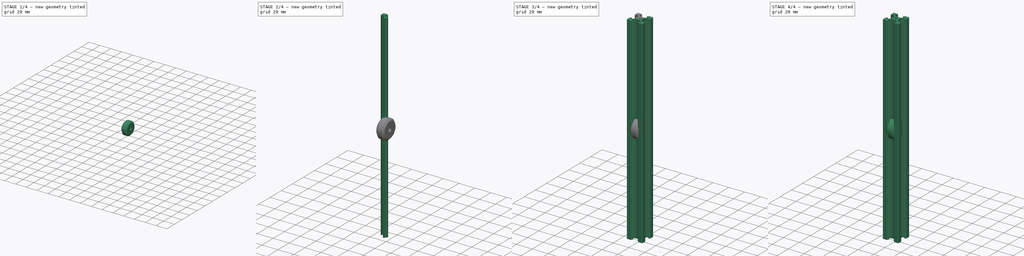
[diagram: build sequence overview — one tinted view per stage of 4, left to right]
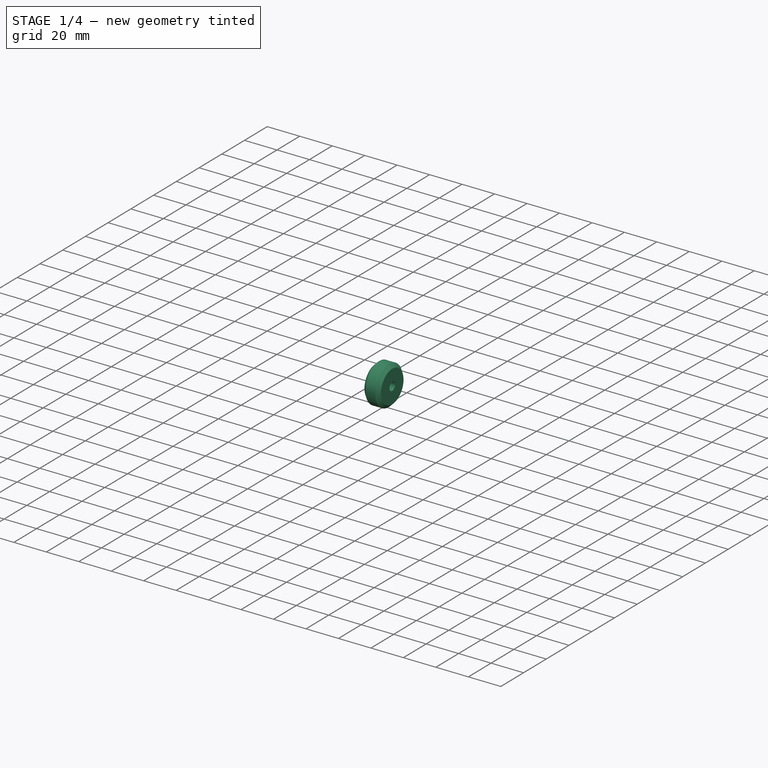
[diagram: stage 1 of 4 — iso view after this stage's code; geometry added in this stage tinted green]
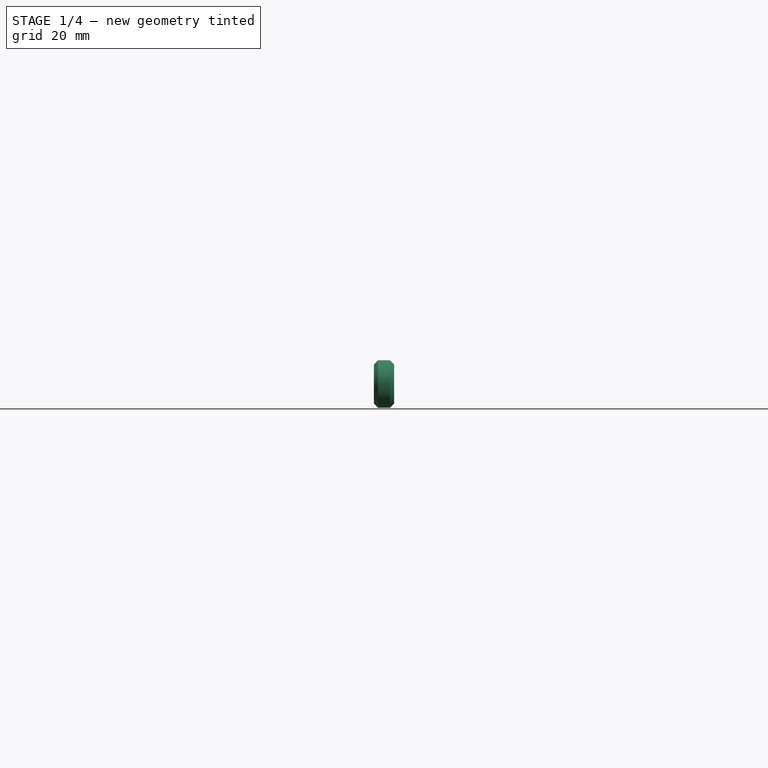
[diagram: stage 1 of 4 — front view after this stage's code; geometry added in this stage tinted green]
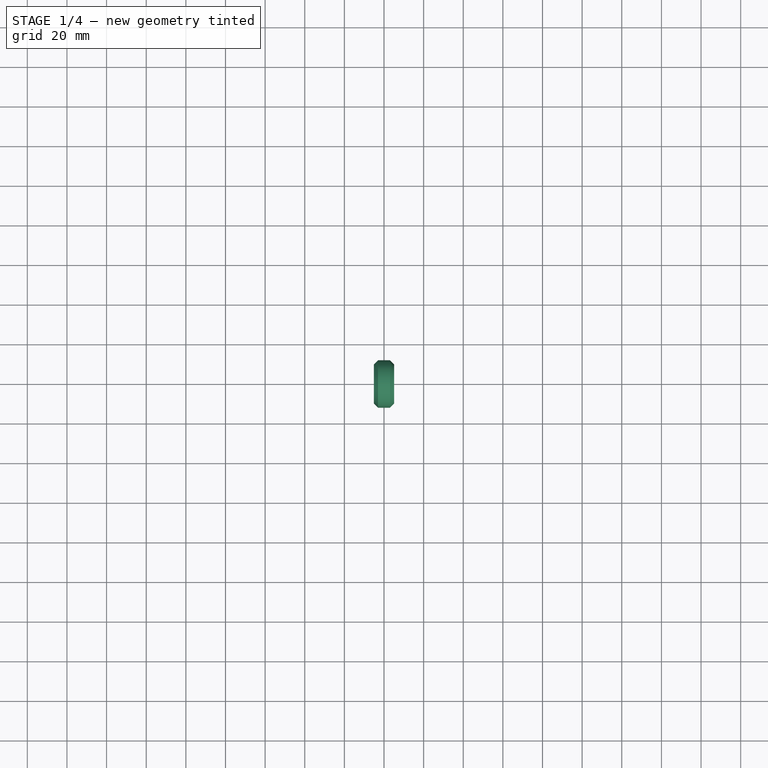
[diagram: stage 1 of 4 — top view after this stage's code; geometry added in this stage tinted green]
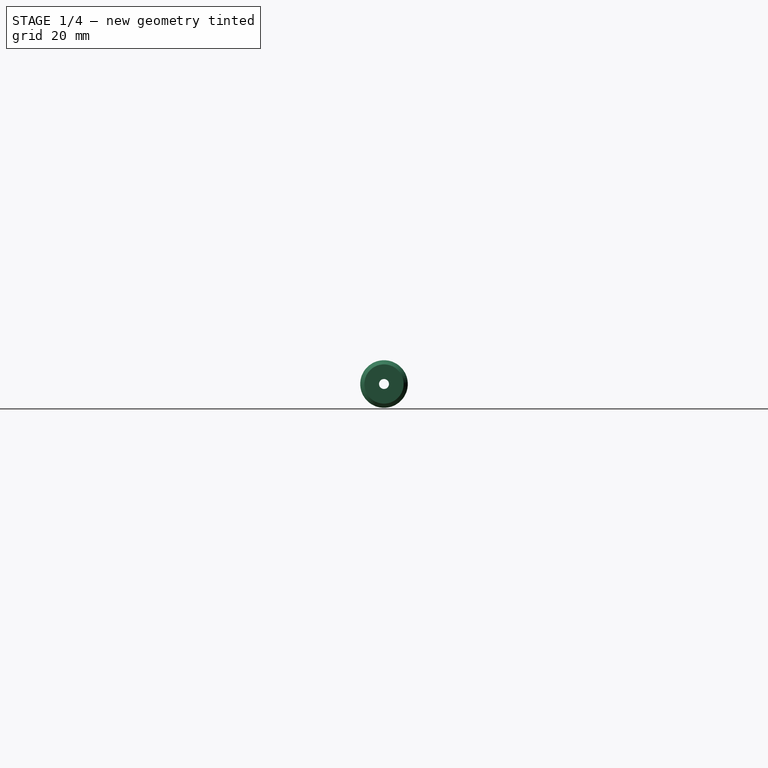
[diagram: stage 1 of 4 — right view after this stage's code; geometry added in this stage tinted green]
FCSTD DOCUMENT  (FreeCAD 0.18R15969 (Git))
Label: hotbar_motion
License: All rights reserved
LicenseURL: http://en.wikipedia.org/wiki/All_rights_reserved
objects: Sketcher::SketchObject×6, PartDesign::Body×6, PartDesign::Pad×3, PartDesign::PolarPattern×3, App::Part×3, PartDesign::Revolution×3, Spreadsheet::Sheet×1
note: 27 computed .brp shape members not serialized (recipe doc carries the construction recipe); baked Part::Feature solids carry a one-line shape summary decoded from their .brp

FEATURE [PartDesign::Body] Body007
  Group = -> [Sketch007,Revolution]
  Origin = -> Origin011
  Placement = pos=(25,0,0) rot=(0,0,1;1.5708rad)
  Tip = -> Revolution
FEATURE [Sketcher::SketchObject] Sketch008
  MapMode = 5
  Placement = pos=(0,0,0) rot=(1,0,0;1.5708rad)
  Support = -> [XZ_Plane012]
  sketch-geometry (8):
    g0: LineSegment StartX=-3 StartY=12 StartZ=0 EndX=-5.1 EndY=9.9 EndZ=0
    g1: LineSegment StartX=-3 StartY=12 StartZ=0 EndX=3 EndY=12 EndZ=0
    g2: LineSegment StartX=3 StartY=12 StartZ=0 EndX=5.1 EndY=9.9 EndZ=0
    g3: LineSegment StartX=-5.1 StartY=9.9 StartZ=0 EndX=-5.1 EndY=2.5 EndZ=0
    g4: LineSegment StartX=-5.1 StartY=2.5 StartZ=0 EndX=5.1 EndY=2.5 EndZ=0
    g5: LineSegment StartX=5.1 StartY=2.5 StartZ=0 EndX=5.1 EndY=9.9 EndZ=0
    g6: LineSegment [constr] StartX=-5.1 StartY=2.5 StartZ=0 EndX=0 EndY=0 EndZ=0
    g7: LineSegment [constr] StartX=0 StartY=0 StartZ=0 EndX=5.1 EndY=2.5 EndZ=0
  constraints (22):
    c: Coincident(g1,g0)
    c: Horizontal(g1)
    c: Coincident(g2,g1)
    c: Coincident(g3,g0)
    c: Vertical(g3)
    c: Coincident(g4,g3)
    c: Horizontal(g4)
    c: Coincident(g5,g4)
    c: Coincident(g5,g2)
    c: Vertical(g5)
    c: Coincident(g6,g3)
    c: Coincident(g6,g-1)
    c: Coincident(g7,g-1)
    c: Coincident(g7,g4)
    c: Equal(g7,g6)
    c: DistanceY(g-1,g3) = 2.5
    c: DistanceX(g3,g4) = 10.2
    c: Equal(g0,g2)
    c: Equal(g3,g5)
    c: Angle(g3,g0) = 2.35619
    c: DistanceX(g1,g1) = 6
    c: DistanceY(g-1,g0) = 12
FEATURE [PartDesign::Revolution] Revolution001
  Angle = 360
  Axis = (1,0,0)
  Base = (0,0,0)
  Placement = pos=(0,0,0) rot=(1,0,0;1.5708rad)
  Profile = -> Sketch008
  ReferenceAxis = -> X_Axis012
  Refine = true
  Reversed = true
FEATURE [PartDesign::Body] Body008
  Group = -> [Sketch008,Revolution001]
  Origin = -> Origin012
  Placement = pos=(-25,0,0) rot=(0,0,1;1.5708rad)
  Tip = -> Revolution001
FEATURE [Sketcher::SketchObject] Sketch009
  MapMode = 5
  Placement = pos=(0,0,0) rot=(1,0,0;1.5708rad)
  Support = -> [XZ_Plane014]
  sketch-geometry (8):
    g0: LineSegment StartX=-3 StartY=12 StartZ=0 EndX=-5.1 EndY=9.9 EndZ=0
    g1: LineSegment StartX=-3 StartY=12 StartZ=0 EndX=3 EndY=12 EndZ=0
    g2: LineSegment StartX=3 StartY=12 StartZ=0 EndX=5.1 EndY=9.9 EndZ=0
    g3: LineSegment StartX=-5.1 StartY=9.9 StartZ=0 EndX=-5.1 EndY=2.5 EndZ=0
    g4: LineSegment StartX=-5.1 StartY=2.5 StartZ=0 EndX=5.1 EndY=2.5 EndZ=0
    g5: LineSegment StartX=5.1 StartY=2.5 StartZ=0 EndX=5.1 EndY=9.9 EndZ=0
    g6: LineSegment [constr] StartX=-5.1 StartY=2.5 StartZ=0 EndX=0 EndY=0 EndZ=0
    g7: LineSegment [constr] StartX=0 StartY=0 StartZ=0 EndX=5.1 EndY=2.5 EndZ=0
  constraints (22):
    c: Coincident(g1,g0)
    c: Horizontal(g1)
    c: Coincident(g2,g1)
    c: Coincident(g3,g0)
    c: Vertical(g3)
    c: Coincident(g4,g3)
    c: Horizontal(g4)
    c: Coincident(g5,g4)
    c: Coincident(g5,g2)
    c: Vertical(g5)
    c: Coincident(g6,g3)
    c: Coincident(g6,g-1)
    c: Coincident(g7,g-1)
    c: Coincident(g7,g4)
    c: Equal(g7,g6)
    c: DistanceY(g-1,g3) = 2.5
    c: DistanceX(g3,g4) = 10.2
    c: Equal(g0,g2)
    c: Equal(g3,g5)
    c: Angle(g3,g0) = 2.35619
    c: DistanceX(g1,g1) = 6
    c: DistanceY(g-1,g0) = 12
FEATURE [PartDesign::Revolution] Revolution002
  Angle = 360
  Axis = (1,0,0)
  Base = (0,0,0)
  Placement = pos=(0,0,0) rot=(1,0,0;1.5708rad)
  Profile = -> Sketch009
  ReferenceAxis = -> X_Axis014
  Refine = true
  Reversed = true
FEATURE [PartDesign::Body] Body009
  Group = -> [Sketch009,Revolution002]
  Origin = -> Origin014
  Placement = pos=(0,0,40) rot=(0,0,1;1.5708rad)
  Tip = -> Revolution002
FEATURE [App::Part] Part004  label="Wheels"
  Group = -> [Body007,Body008,Body009]
  Origin = -> Origin013
  Placement = pos=(0,-115,0) rot=(0,0,1;0rad)
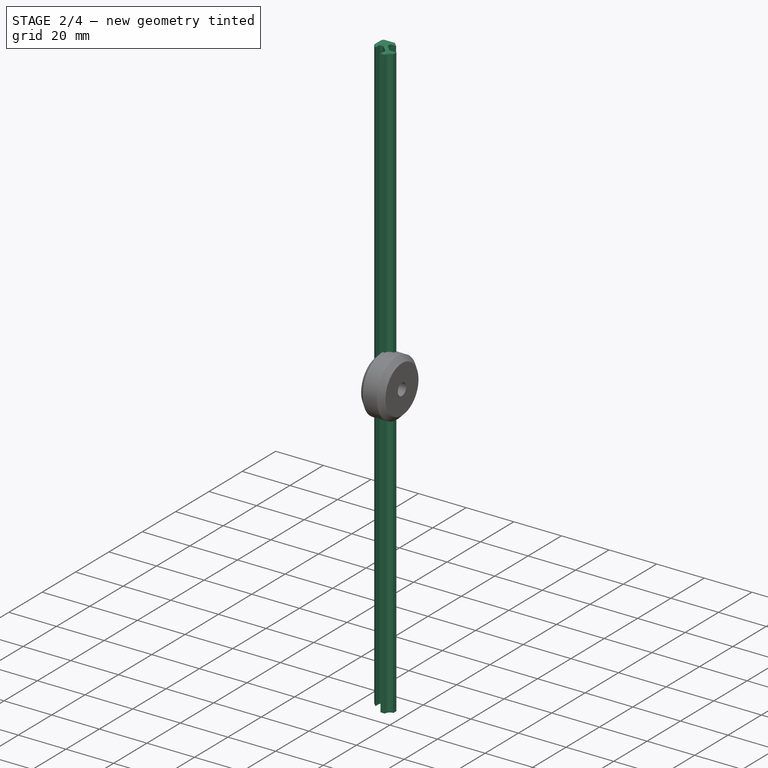
[diagram: stage 2 of 4 — iso view after this stage's code; geometry added in this stage tinted green]
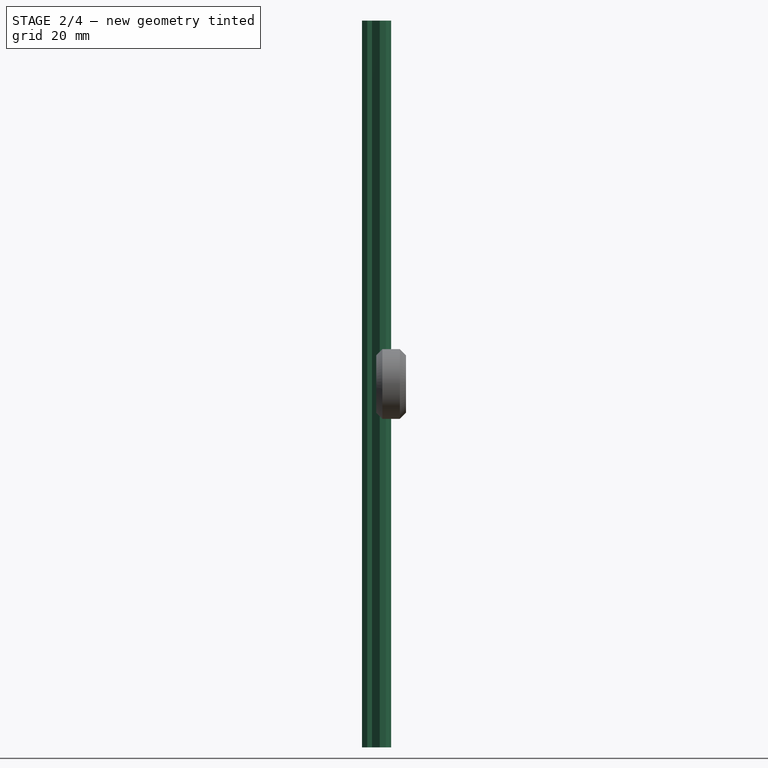
[diagram: stage 2 of 4 — front view after this stage's code; geometry added in this stage tinted green]
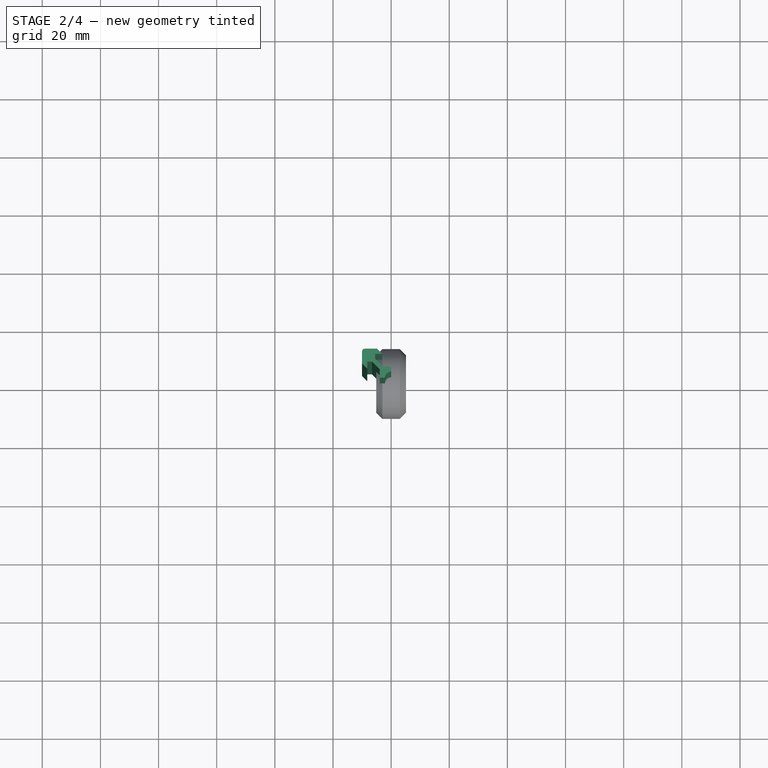
[diagram: stage 2 of 4 — top view after this stage's code; geometry added in this stage tinted green]
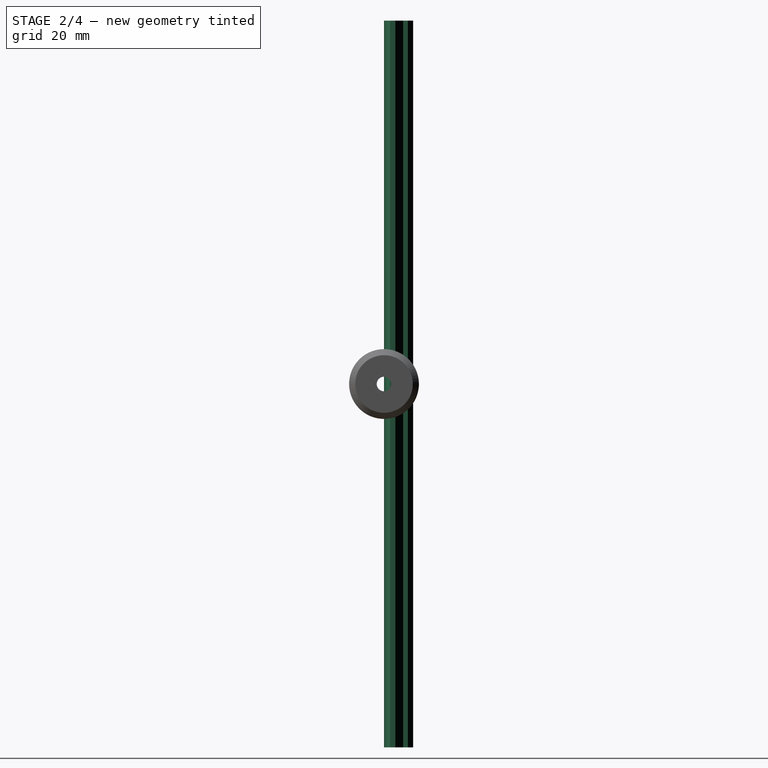
[diagram: stage 2 of 4 — right view after this stage's code; geometry added in this stage tinted green]
FEATURE [PartDesign::Body] Body005  label="V-Slot Rail001"
  Group = -> [Sketch005,Pad001,PolarPattern001]
  Origin = -> Origin008
  Placement = pos=(0,0,20) rot=(1,0,0;1.5708rad)
  Tip = -> PolarPattern001
FEATURE [App::Part] Part003
  Group = -> [Body005]
  Origin = -> Origin009
FEATURE [Sketcher::SketchObject] Sketch006
  MapMode = 5
  Support = -> [XY_Plane010]
  sketch-geometry (20):
    g0: LineSegment [constr] StartX=-10 StartY=4.9 StartZ=0 EndX=-10 EndY=10 EndZ=0
    g1: LineSegment [constr] StartX=-10 StartY=10 StartZ=0 EndX=-4.9 EndY=10 EndZ=0
    g2: LineSegment StartX=-4.9 StartY=10 StartZ=0 EndX=-3.1 EndY=8.2 EndZ=0
    g3: LineSegment StartX=-3.1 StartY=8.2 StartZ=0 EndX=-5.49934 EndY=8.2 EndZ=0
    g4: LineSegment StartX=-5.49934 StartY=8.2 StartZ=0 EndX=-5.49934 EndY=6.56 EndZ=0
    g5: LineSegment StartX=-5.49934 StartY=6.56 StartZ=0 EndX=-2.84 EndY=3.90066 EndZ=0
    g6: LineSegment StartX=-2.84 StartY=3.90066 StartZ=0 EndX=0 EndY=3.90066 EndZ=0
    g7: LineSegment [constr] StartX=0 StartY=0 StartZ=0 EndX=0 EndY=3.90066 EndZ=0
    g8: LineSegment [constr] StartX=0 StartY=0 StartZ=0 EndX=-3.90066 EndY=0 EndZ=0
    g9: LineSegment StartX=-3.90066 StartY=0 StartZ=0 EndX=-3.90066 EndY=2.84 EndZ=0
    g10: LineSegment StartX=-3.90066 StartY=2.84 StartZ=0 EndX=-6.56 EndY=5.49934 EndZ=0
    g11: LineSegment StartX=-6.56 StartY=5.49934 StartZ=0 EndX=-8.2 EndY=5.49934 EndZ=0
    g12: LineSegment StartX=-8.2 StartY=5.49934 StartZ=0 EndX=-8.2 EndY=3.1 EndZ=0
    g13: LineSegment StartX=-8.2 StartY=3.1 StartZ=0 EndX=-10 EndY=4.9 EndZ=0
    g14: LineSegment StartX=-3.90066 StartY=0 StartZ=0 EndX=-2.1 EndY=3e-16 EndZ=0
    g15: LineSegment StartX=0 StartY=3.90066 StartZ=0 EndX=0 EndY=2.1 EndZ=0
    g16: ArcOfCircle CenterX=0 CenterY=0 CenterZ=0 NormalX=0 NormalY=0 NormalZ=1 AngleXU=0 Radius=2.1 StartAngle=1.5708 EndAngle=3.14159
    g17: LineSegment StartX=-4.9 StartY=10 StartZ=0 EndX=-9 EndY=10 EndZ=0
    g18: LineSegment StartX=-10 StartY=4.9 StartZ=0 EndX=-10 EndY=9 EndZ=0
    g19: ArcOfCircle CenterX=-9 CenterY=9 CenterZ=0 NormalX=0 NormalY=0 NormalZ=1 AngleXU=0 Radius=1 StartAngle=1.5708 EndAngle=3.14159
  constraints (56):
    c: Vertical(g0)
    c: Coincident(g1,g0)
    c: Horizontal(g1)
    c: Coincident(g2,g1)
    c: Coincident(g3,g2)
    c: Horizontal(g3)
    c: Coincident(g4,g3)
    c: Vertical(g4)
    c: Coincident(g5,g4)
    c: Coincident(g6,g5)
    c: PointOnObject(g6,g-2)
    c: Horizontal(g6)
    c: Coincident(g7,g-1)
    c: Coincident(g7,g6)
    c: Coincident(g8,g7)
    c: PointOnObject(g8,g-1)
    c: Coincident(g9,g8)
    c: Vertical(g9)
    c: Coincident(g10,g9)
    c: Coincident(g11,g10)
    c: Horizontal(g11)
    c: Coincident(g12,g11)
    c: Vertical(g12)
    c: Coincident(g13,g12)
    c: Coincident(g13,g0)
    c: Equal(g9,g6)
    c: Equal(g8,g7)
    c: Equal(g5,g10)
    c: Equal(g4,g11)
    c: Equal(g3,g12)
    c: Equal(g13,g2)
    c: Equal(g1,g0)
    c: DistanceX(g0,g7) = 10
    c: DistanceY(g7,g0) = 10
    c: DistanceX(g2,g7) = 3.1
    c: Angle(g2,g3) = 0.785398
    c: DistanceY(g2,g1) = 1.8
    c: DistanceX(g6,g6) = 2.84
    c: Parallel(g5,g2)
    c: Distance(g4,g10) = 1.5
    c: DistanceX(g11,g10) = 1.64
    c: Coincident(g14,g9)
    c: PointOnObject(g14,g8)
    c: Coincident(g15,g6)
    c: PointOnObject(g15,g7)
    c: Coincident(g16,g-1)
    c: Coincident(g16,g14)
    c: Coincident(g16,g15)
    c: Radius(g16) = 2.1
    c: Coincident(g17,g2)
    c: Coincident(g18,g13)
    c: Tangent(g18,g19) = 1.5708
    c: Tangent(g17,g19) = -1.5708
    c: PointOnObject(g18,g0)
    c: PointOnObject(g17,g1)
    c: Radius(g19) = 1
FEATURE [PartDesign::Pad] Pad002
  Length = 250
  Length2 = 100
  Midplane = true
  Profile = -> Sketch006
  Refine = true
  Type = 0
FEATURE [PartDesign::Body] Body006  label="V-Slot Rail002"
  Group = -> [Sketch006,Pad002,PolarPattern002]
  Origin = -> Origin010
  Placement = pos=(0,-115,20) rot=(0,1,0;1.5708rad)
  Tip = -> PolarPattern002
FEATURE [App::Part] Part  label="x"
  Group = -> [Body,Body006]
  Origin = -> Origin001
FEATURE [Sketcher::SketchObject] Sketch007
  MapMode = 5
  Placement = pos=(0,0,0) rot=(1,0,0;1.5708rad)
  Support = -> [XZ_Plane011]
  sketch-geometry (8):
    g0: LineSegment StartX=-3 StartY=12 StartZ=0 EndX=-5.1 EndY=9.9 EndZ=0
    g1: LineSegment StartX=-3 StartY=12 StartZ=0 EndX=3 EndY=12 EndZ=0
    g2: LineSegment StartX=3 StartY=12 StartZ=0 EndX=5.1 EndY=9.9 EndZ=0
    g3: LineSegment StartX=-5.1 StartY=9.9 StartZ=0 EndX=-5.1 EndY=2.5 EndZ=0
    g4: LineSegment StartX=-5.1 StartY=2.5 StartZ=0 EndX=5.1 EndY=2.5 EndZ=0
    g5: LineSegment StartX=5.1 StartY=2.5 StartZ=0 EndX=5.1 EndY=9.9 EndZ=0
    g6: LineSegment [constr] StartX=-5.1 StartY=2.5 StartZ=0 EndX=0 EndY=0 EndZ=0
    g7: LineSegment [constr] StartX=0 StartY=0 StartZ=0 EndX=5.1 EndY=2.5 EndZ=0
  constraints (22):
    c: Coincident(g1,g0)
    c: Horizontal(g1)
    c: Coincident(g2,g1)
    c: Coincident(g3,g0)
    c: Vertical(g3)
    c: Coincident(g4,g3)
    c: Horizontal(g4)
    c: Coincident(g5,g4)
    c: Coincident(g5,g2)
    c: Vertical(g5)
    c: Coincident(g6,g3)
    c: Coincident(g6,g-1)
    c: Coincident(g7,g-1)
    c: Coincident(g7,g4)
    c: Equal(g7,g6)
    c: DistanceY(g-1,g3) = 2.5
    c: DistanceX(g3,g4) = 10.2
    c: Equal(g0,g2)
    c: Equal(g3,g5)
    c: Angle(g3,g0) = 2.35619
    c: DistanceX(g1,g1) = 6
    c: DistanceY(g-1,g0) = 12
FEATURE [PartDesign::Revolution] Revolution
  Angle = 360
  Axis = (1,0,0)
  Base = (0,0,0)
  Placement = pos=(0,0,0) rot=(1,0,0;1.5708rad)
  Profile = -> Sketch007
  ReferenceAxis = -> X_Axis011
  Refine = true
  Reversed = true
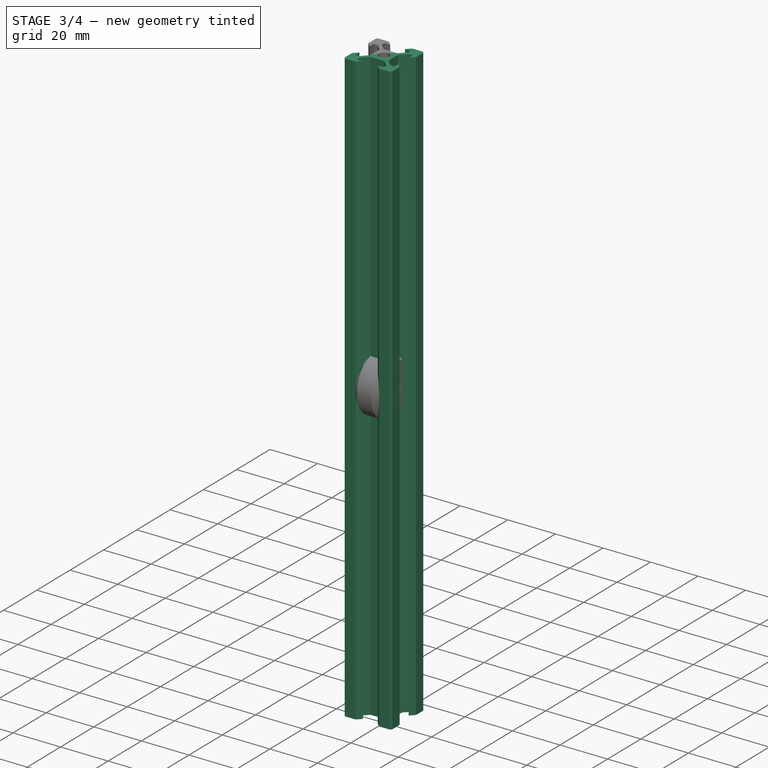
[diagram: stage 3 of 4 — iso view after this stage's code; geometry added in this stage tinted green]
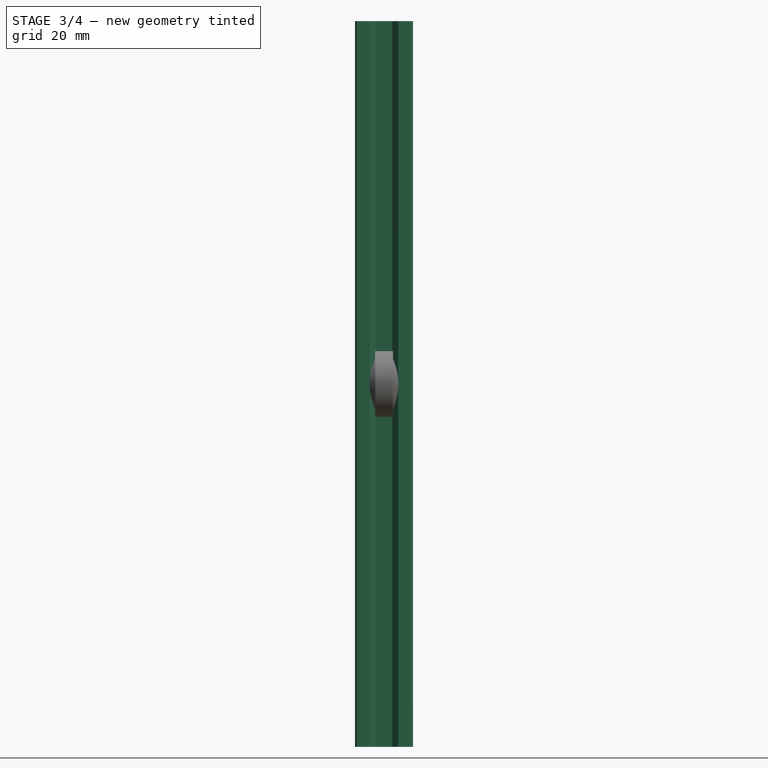
[diagram: stage 3 of 4 — front view after this stage's code; geometry added in this stage tinted green]
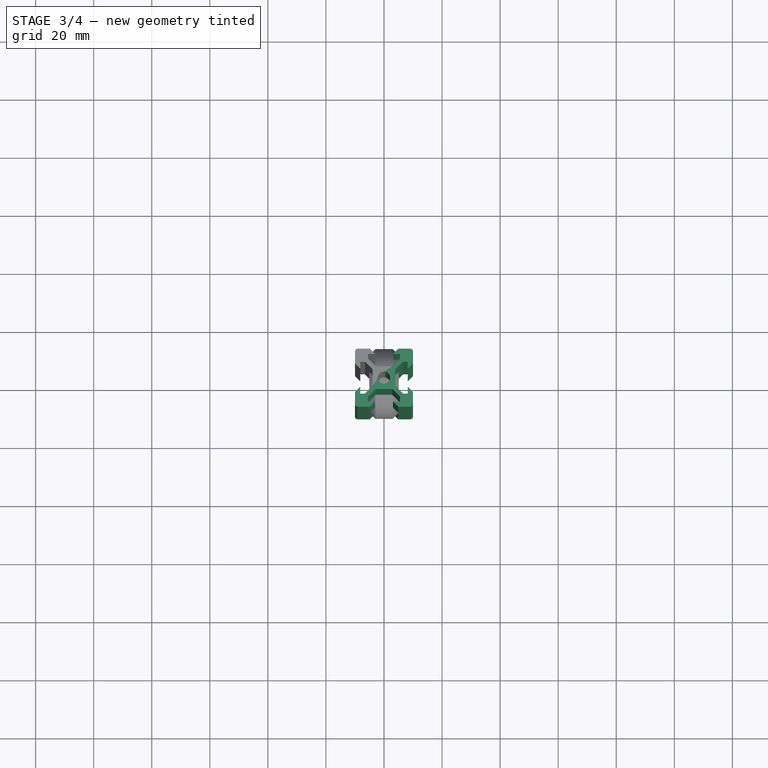
[diagram: stage 3 of 4 — top view after this stage's code; geometry added in this stage tinted green]
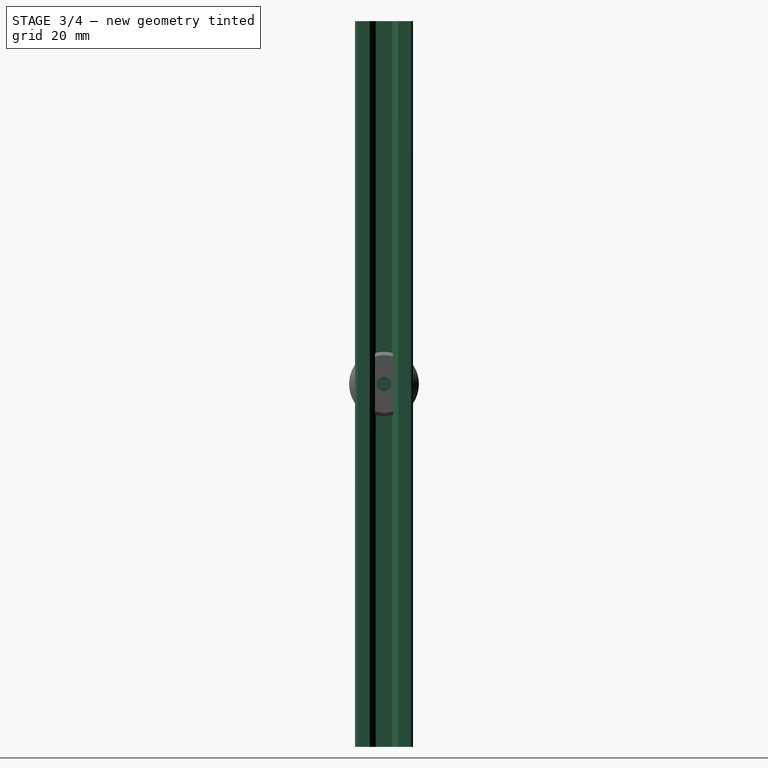
[diagram: stage 3 of 4 — right view after this stage's code; geometry added in this stage tinted green]
FEATURE [PartDesign::Body] Body  label="V-Slot Rail"
  Group = -> [Sketch,Pad,PolarPattern]
  Origin = -> Origin
  Placement = pos=(0,115,20) rot=(0,1,0;1.5708rad)
  Tip = -> PolarPattern
FEATURE [Sketcher::SketchObject] Sketch005
  MapMode = 5
  Support = -> [XY_Plane008]
  sketch-geometry (20):
    g0: LineSegment [constr] StartX=-10 StartY=4.9 StartZ=0 EndX=-10 EndY=10 EndZ=0
    g1: LineSegment [constr] StartX=-10 StartY=10 StartZ=0 EndX=-4.9 EndY=10 EndZ=0
    g2: LineSegment StartX=-4.9 StartY=10 StartZ=0 EndX=-3.1 EndY=8.2 EndZ=0
    g3: LineSegment StartX=-3.1 StartY=8.2 StartZ=0 EndX=-5.49934 EndY=8.2 EndZ=0
    g4: LineSegment StartX=-5.49934 StartY=8.2 StartZ=0 EndX=-5.49934 EndY=6.56 EndZ=0
    g5: LineSegment StartX=-5.49934 StartY=6.56 StartZ=0 EndX=-2.84 EndY=3.90066 EndZ=0
    g6: LineSegment StartX=-2.84 StartY=3.90066 StartZ=0 EndX=0 EndY=3.90066 EndZ=0
    g7: LineSegment [constr] StartX=0 StartY=0 StartZ=0 EndX=0 EndY=3.90066 EndZ=0
    g8: LineSegment [constr] StartX=0 StartY=0 StartZ=0 EndX=-3.90066 EndY=0 EndZ=0
    g9: LineSegment StartX=-3.90066 StartY=0 StartZ=0 EndX=-3.90066 EndY=2.84 EndZ=0
    g10: LineSegment StartX=-3.90066 StartY=2.84 StartZ=0 EndX=-6.56 EndY=5.49934 EndZ=0
    g11: LineSegment StartX=-6.56 StartY=5.49934 StartZ=0 EndX=-8.2 EndY=5.49934 EndZ=0
    g12: LineSegment StartX=-8.2 StartY=5.49934 StartZ=0 EndX=-8.2 EndY=3.1 EndZ=0
    g13: LineSegment StartX=-8.2 StartY=3.1 StartZ=0 EndX=-10 EndY=4.9 EndZ=0
    g14: LineSegment StartX=-3.90066 StartY=0 StartZ=0 EndX=-2.1 EndY=3e-16 EndZ=0
    g15: LineSegment StartX=0 StartY=3.90066 StartZ=0 EndX=0 EndY=2.1 EndZ=0
    g16: ArcOfCircle CenterX=0 CenterY=0 CenterZ=0 NormalX=0 NormalY=0 NormalZ=1 AngleXU=0 Radius=2.1 StartAngle=1.5708 EndAngle=3.14159
    g17: LineSegment StartX=-4.9 StartY=10 StartZ=0 EndX=-9 EndY=10 EndZ=0
    g18: LineSegment StartX=-10 StartY=4.9 StartZ=0 EndX=-10 EndY=9 EndZ=0
    g19: ArcOfCircle CenterX=-9 CenterY=9 CenterZ=0 NormalX=0 NormalY=0 NormalZ=1 AngleXU=0 Radius=1 StartAngle=1.5708 EndAngle=3.14159
  constraints (56):
    c: Vertical(g0)
    c: Coincident(g1,g0)
    c: Horizontal(g1)
    c: Coincident(g2,g1)
    c: Coincident(g3,g2)
    c: Horizontal(g3)
    c: Coincident(g4,g3)
    c: Vertical(g4)
    c: Coincident(g5,g4)
    c: Coincident(g6,g5)
    c: PointOnObject(g6,g-2)
    c: Horizontal(g6)
    c: Coincident(g7,g-1)
    c: Coincident(g7,g6)
    c: Coincident(g8,g7)
    c: PointOnObject(g8,g-1)
    c: Coincident(g9,g8)
    c: Vertical(g9)
    c: Coincident(g10,g9)
    c: Coincident(g11,g10)
    c: Horizontal(g11)
    c: Coincident(g12,g11)
    c: Vertical(g12)
    c: Coincident(g13,g12)
    c: Coincident(g13,g0)
    c: Equal(g9,g6)
    c: Equal(g8,g7)
    c: Equal(g5,g10)
    c: Equal(g4,g11)
    c: Equal(g3,g12)
    c: Equal(g13,g2)
    c: Equal(g1,g0)
    c: DistanceX(g0,g7) = 10
    c: DistanceY(g7,g0) = 10
    c: DistanceX(g2,g7) = 3.1
    c: Angle(g2,g3) = 0.785398
    c: DistanceY(g2,g1) = 1.8
    c: DistanceX(g6,g6) = 2.84
    c: Parallel(g5,g2)
    c: Distance(g4,g10) = 1.5
    c: DistanceX(g11,g10) = 1.64
    c: Coincident(g14,g9)
    c: PointOnObject(g14,g8)
    c: Coincident(g15,g6)
    c: PointOnObject(g15,g7)
    c: Coincident(g16,g-1)
    c: Coincident(g16,g14)
    c: Coincident(g16,g15)
    c: Radius(g16) = 2.1
    c: Coincident(g17,g2)
    c: Coincident(g18,g13)
    c: Tangent(g18,g19) = 1.5708
    c: Tangent(g17,g19) = -1.5708
    c: PointOnObject(g18,g0)
    c: PointOnObject(g17,g1)
    c: Radius(g19) = 1
FEATURE [PartDesign::Pad] Pad001
  Length = 200
  Length2 = 100
  Midplane = true
  Profile = -> Sketch005
  Refine = true
  Type = 0
FEATURE [PartDesign::PolarPattern] PolarPattern001
  Angle = 360
  Axis = -> Sketch005 [N_Axis]
  BaseFeature = -> Pad001
  Occurrences = 4
  Originals = -> [Pad001]
  Refine = true
FEATURE [PartDesign::PolarPattern] PolarPattern002
  Angle = 360
  Axis = -> Sketch006 [N_Axis]
  BaseFeature = -> Pad002
  Occurrences = 4
  Originals = -> [Pad002]
  Refine = true
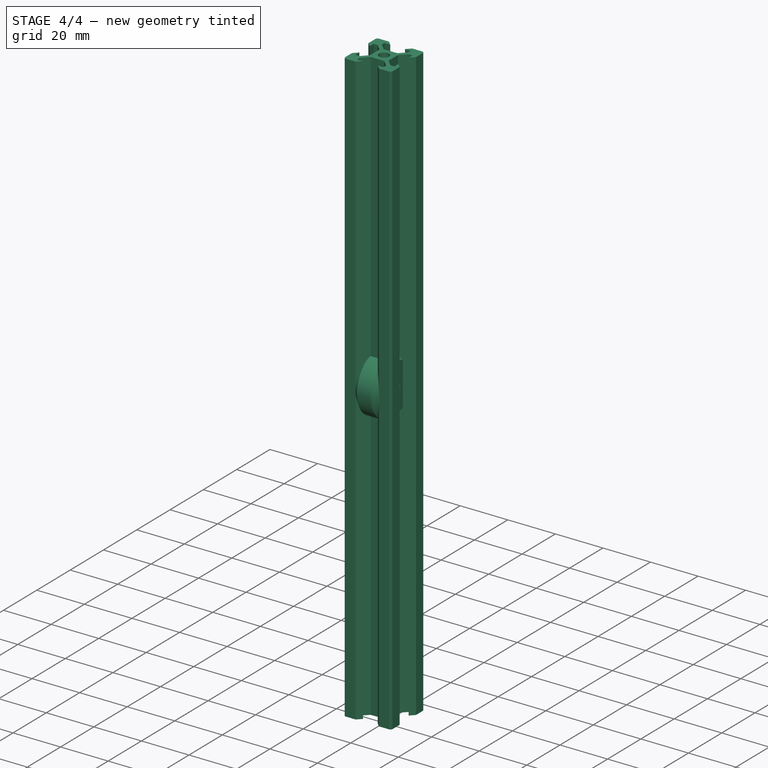
[diagram: stage 4 of 4 — iso view after this stage's code; geometry added in this stage tinted green]
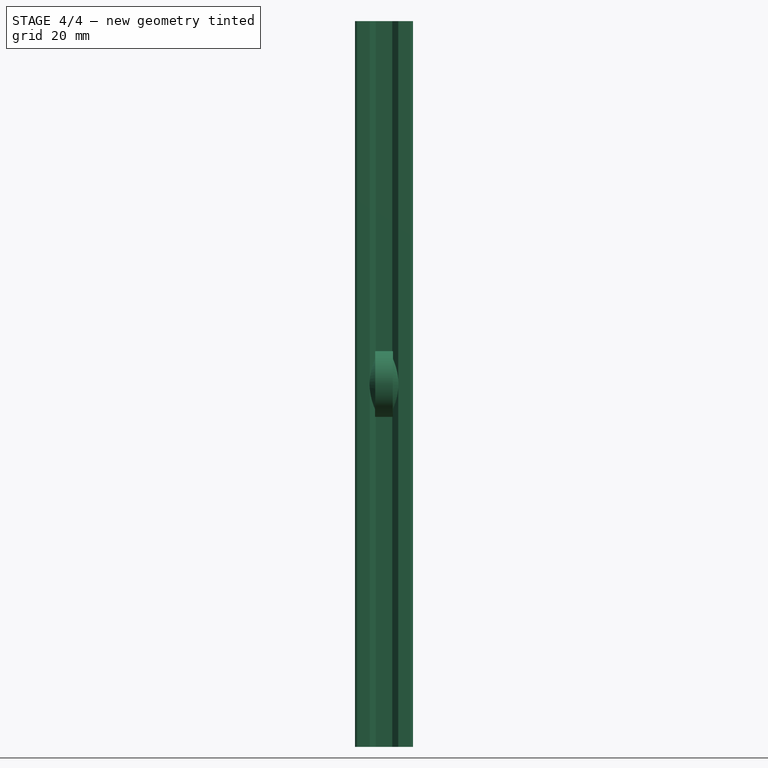
[diagram: stage 4 of 4 — front view after this stage's code; geometry added in this stage tinted green]
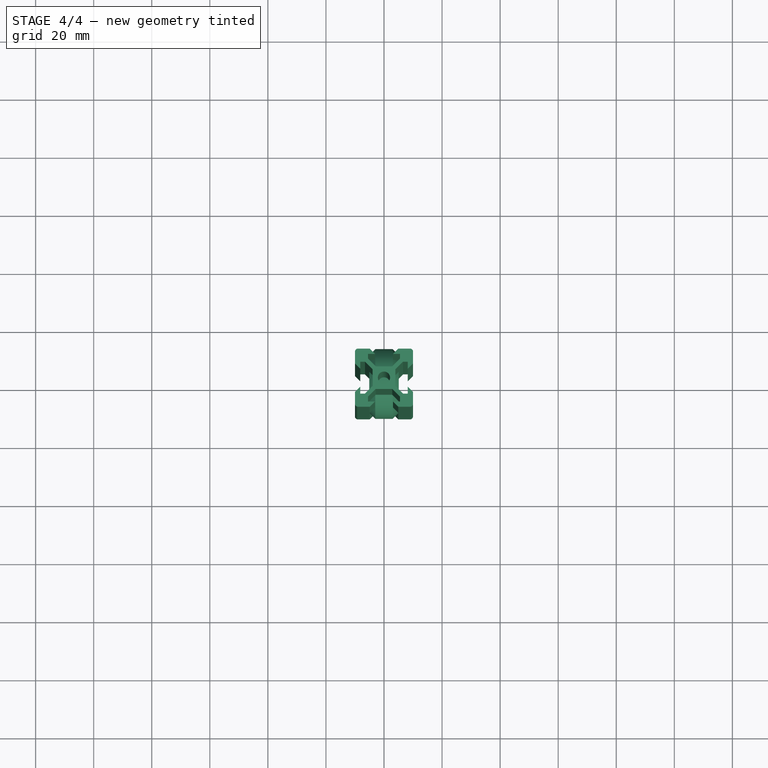
[diagram: stage 4 of 4 — top view after this stage's code; geometry added in this stage tinted green]
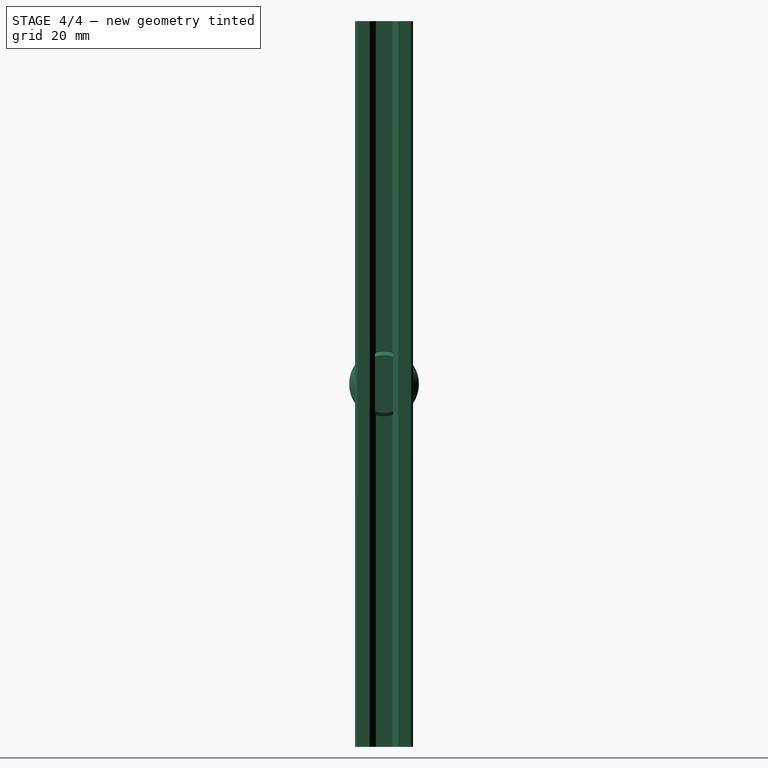
[diagram: stage 4 of 4 — right view after this stage's code; geometry added in this stage tinted green]
FEATURE [Spreadsheet::Sheet] Spreadsheet  label="motion"
FEATURE [Sketcher::SketchObject] Sketch
  MapMode = 5
  Support = -> [XY_Plane]
  sketch-geometry (20):
    g0: LineSegment [constr] StartX=-10 StartY=4.9 StartZ=0 EndX=-10 EndY=10 EndZ=0
    g1: LineSegment [constr] StartX=-10 StartY=10 StartZ=0 EndX=-4.9 EndY=10 EndZ=0
    g2: LineSegment StartX=-4.9 StartY=10 StartZ=0 EndX=-3.1 EndY=8.2 EndZ=0
    g3: LineSegment StartX=-3.1 StartY=8.2 StartZ=0 EndX=-5.49934 EndY=8.2 EndZ=0
    g4: LineSegment StartX=-5.49934 StartY=8.2 StartZ=0 EndX=-5.49934 EndY=6.56 EndZ=0
    g5: LineSegment StartX=-5.49934 StartY=6.56 StartZ=0 EndX=-2.84 EndY=3.90066 EndZ=0
    g6: LineSegment StartX=-2.84 StartY=3.90066 StartZ=0 EndX=0 EndY=3.90066 EndZ=0
    g7: LineSegment [constr] StartX=0 StartY=0 StartZ=0 EndX=0 EndY=3.90066 EndZ=0
    g8: LineSegment [constr] StartX=0 StartY=0 StartZ=0 EndX=-3.90066 EndY=0 EndZ=0
    g9: LineSegment StartX=-3.90066 StartY=0 StartZ=0 EndX=-3.90066 EndY=2.84 EndZ=0
    g10: LineSegment StartX=-3.90066 StartY=2.84 StartZ=0 EndX=-6.56 EndY=5.49934 EndZ=0
    g11: LineSegment StartX=-6.56 StartY=5.49934 StartZ=0 EndX=-8.2 EndY=5.49934 EndZ=0
    g12: LineSegment StartX=-8.2 StartY=5.49934 StartZ=0 EndX=-8.2 EndY=3.1 EndZ=0
    g13: LineSegment StartX=-8.2 StartY=3.1 StartZ=0 EndX=-10 EndY=4.9 EndZ=0
    g14: LineSegment StartX=-3.90066 StartY=0 StartZ=0 EndX=-2.1 EndY=3e-16 EndZ=0
    g15: LineSegment StartX=0 StartY=3.90066 StartZ=0 EndX=0 EndY=2.1 EndZ=0
    g16: ArcOfCircle CenterX=0 CenterY=0 CenterZ=0 NormalX=0 NormalY=0 NormalZ=1 AngleXU=0 Radius=2.1 StartAngle=1.5708 EndAngle=3.14159
    g17: LineSegment StartX=-4.9 StartY=10 StartZ=0 EndX=-9 EndY=10 EndZ=0
    g18: LineSegment StartX=-10 StartY=4.9 StartZ=0 EndX=-10 EndY=9 EndZ=0
    g19: ArcOfCircle CenterX=-9 CenterY=9 CenterZ=0 NormalX=0 NormalY=0 NormalZ=1 AngleXU=0 Radius=1 StartAngle=1.5708 EndAngle=3.14159
  constraints (56):
    c: Vertical(g0)
    c: Coincident(g1,g0)
    c: Horizontal(g1)
    c: Coincident(g2,g1)
    c: Coincident(g3,g2)
    c: Horizontal(g3)
    c: Coincident(g4,g3)
    c: Vertical(g4)
    c: Coincident(g5,g4)
    c: Coincident(g6,g5)
    c: PointOnObject(g6,g-2)
    c: Horizontal(g6)
    c: Coincident(g7,g-1)
    c: Coincident(g7,g6)
    c: Coincident(g8,g7)
    c: PointOnObject(g8,g-1)
    c: Coincident(g9,g8)
    c: Vertical(g9)
    c: Coincident(g10,g9)
    c: Coincident(g11,g10)
    c: Horizontal(g11)
    c: Coincident(g12,g11)
    c: Vertical(g12)
    c: Coincident(g13,g12)
    c: Coincident(g13,g0)
    c: Equal(g9,g6)
    c: Equal(g8,g7)
    c: Equal(g5,g10)
    c: Equal(g4,g11)
    c: Equal(g3,g12)
    c: Equal(g13,g2)
    c: Equal(g1,g0)
    c: DistanceX(g0,g7) = 10
    c: DistanceY(g7,g0) = 10
    c: DistanceX(g2,g7) = 3.1
    c: Angle(g2,g3) = 0.785398
    c: DistanceY(g2,g1) = 1.8
    c: DistanceX(g6,g6) = 2.84
    c: Parallel(g5,g2)
    c: Distance(g4,g10) = 1.5
    c: DistanceX(g11,g10) = 1.64
    c: Coincident(g14,g9)
    c: PointOnObject(g14,g8)
    c: Coincident(g15,g6)
    c: PointOnObject(g15,g7)
    c: Coincident(g16,g-1)
    c: Coincident(g16,g14)
    c: Coincident(g16,g15)
    c: Radius(g16) = 2.1
    c: Coincident(g17,g2)
    c: Coincident(g18,g13)
    c: Tangent(g18,g19) = 1.5708
    c: Tangent(g17,g19) = -1.5708
    c: PointOnObject(g18,g0)
    c: PointOnObject(g17,g1)
    c: Radius(g19) = 1
FEATURE [PartDesign::Pad] Pad
  Length = 250
  Length2 = 100
  Midplane = true
  Profile = -> Sketch
  Refine = true
  Type = 0
FEATURE [PartDesign::PolarPattern] PolarPattern
  Angle = 360
  Axis = -> Sketch [N_Axis]
  BaseFeature = -> Pad
  Occurrences = 4
  Originals = -> [Pad]
  Refine = true
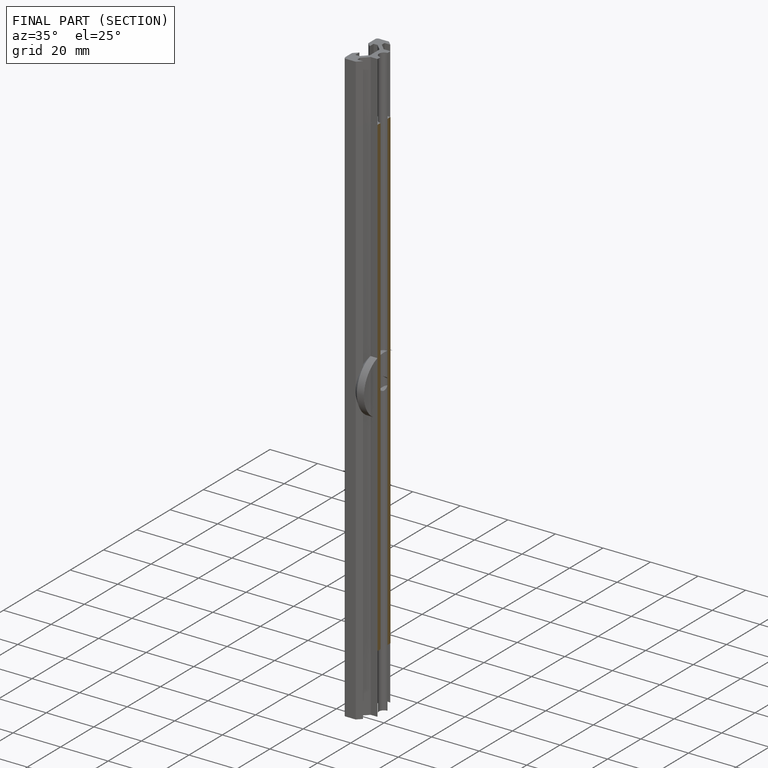
[diagram: finished part — half-section view (interior)]
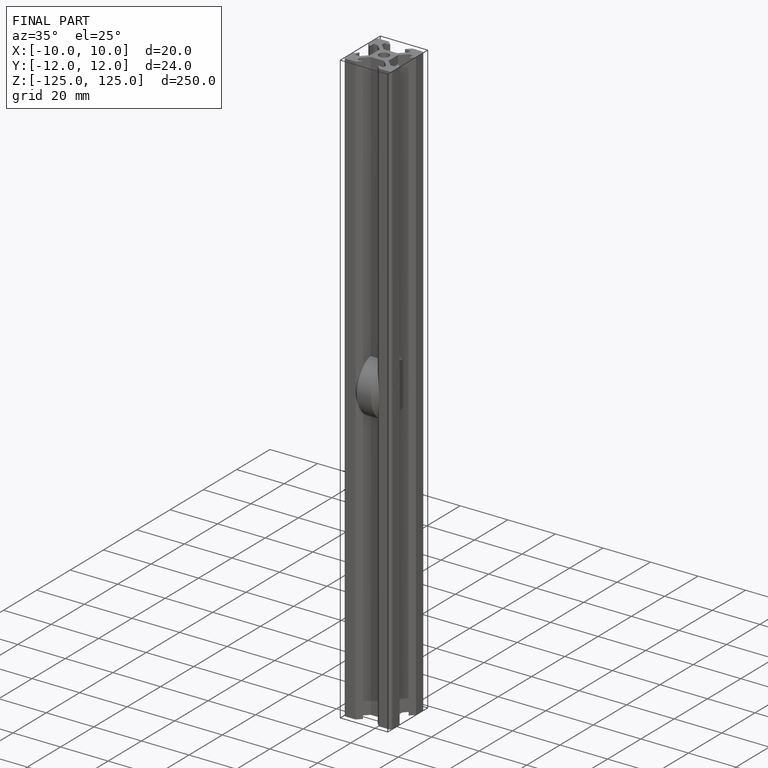
[diagram: finished part — iso view with bounding-box wireframe]
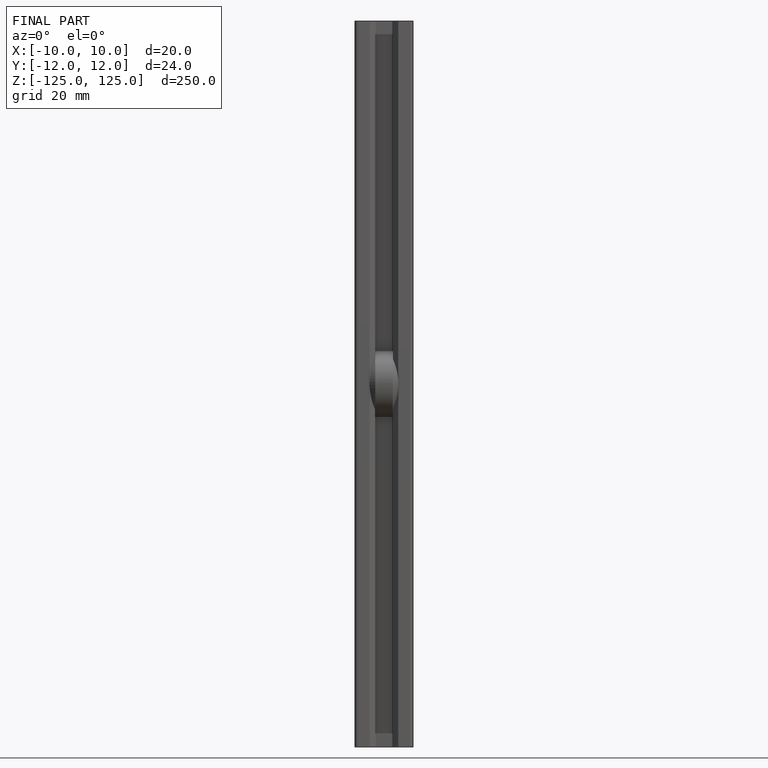
[diagram: finished part — front view with bounding-box wireframe]
